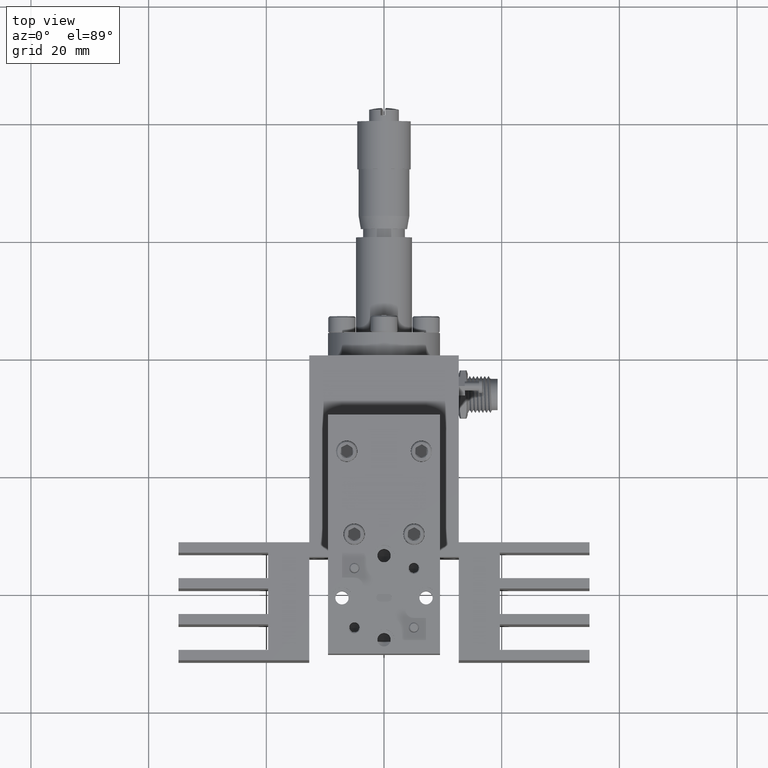
[diagram: clean part render]
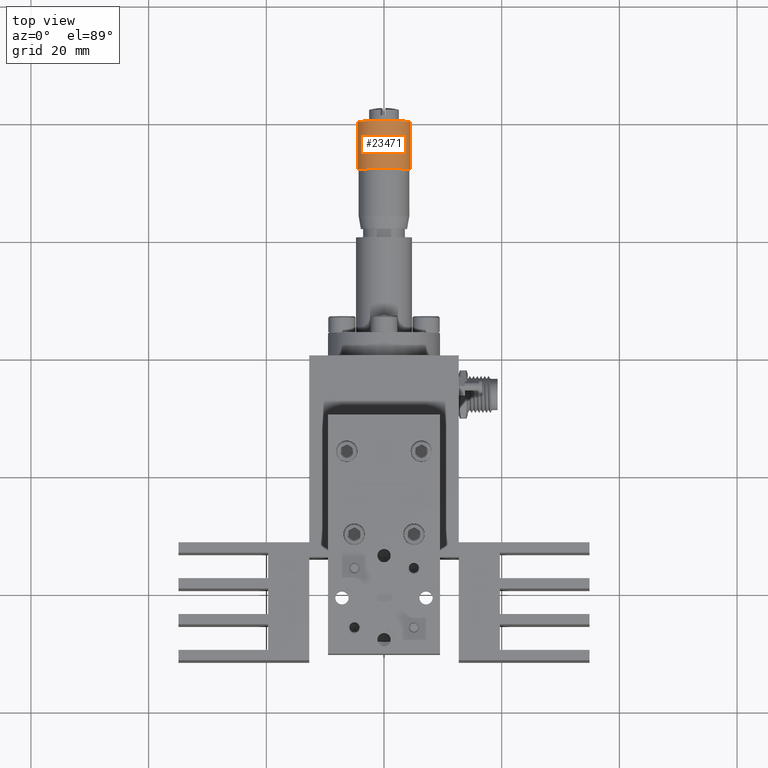
[diagram: same view with one face highlighted and labeled with its STEP entity id]
A machine part, top view. The second image highlights one B-rep face of the part: STEP entity #23471.
In plain terms, the highlighted cylindrical surface (edge-blend (fillet) strip) has radius 4.572 mm, axis along (-0, -1, -0).
Its self-contained STEP definition (entity closure, byte-faithful):
#361 = ORIENTED_EDGE ( 'NONE', *, *, #10042, .T. ) ;
#521 = DIRECTION ( 'NONE',  ( 0.9963761417738301600, 0.0000000000000000000, 0.08505635839780752200 ) ) ;
#1142 = DIRECTION ( 'NONE',  ( -7.062697882880940100E-017, -1.000000000000000000, -5.550089440289674800E-017 ) ) ;
#1344 = DIRECTION ( 'NONE',  ( -7.062697882880940100E-017, -1.000000000000000000, -5.550089440289674800E-017 ) ) ;
#1386 = LINE ( 'NONE', #26009, #13593 ) ;
#1967 = CARTESIAN_POINT ( 'NONE',  ( 0.1793477055192896400, 2.374581112791320300, 0.01531014451160544800 ) ) ;
#3254 = CIRCLE ( 'NONE', #19775, 0.1800000000000000800 ) ;
#3791 = EDGE_LOOP ( 'NONE', ( #33754, #361, #16388, #37160 ) ) ;
#6687 = VERTEX_POINT ( 'NONE', #16324 ) ;
#6705 = DIRECTION ( 'NONE',  ( -7.062697882880940100E-017, -1.000000000000000000, -5.550089440289674800E-017 ) ) ;
#6803 = CYLINDRICAL_SURFACE ( 'NONE', #15404, 0.1800000000000000800 ) ;
#7250 = FACE_OUTER_BOUND ( 'NONE', #3791, .T. ) ;
#8212 = VERTEX_POINT ( 'NONE', #13077 ) ;
#9183 = EDGE_CURVE ( 'NONE', #19959, #9706, #1386, .T. ) ;
#9592 = CARTESIAN_POINT ( 'NONE',  ( 1.365923996832131600E-016, 2.054581112791319600, 8.537024980200822600E-017 ) ) ;
#9706 = VERTEX_POINT ( 'NONE', #22914 ) ;
#10042 = EDGE_CURVE ( 'NONE', #8212, #6687, #37047, .T. ) ;
#12924 = EDGE_CURVE ( 'NONE', #9706, #6687, #19460, .T. ) ;
#13077 = CARTESIAN_POINT ( 'NONE',  ( -0.1793477055192893600, 2.374581112791320300, -0.01531014451160526300 ) ) ;
#13593 = VECTOR ( 'NONE', #28886, 39.37007874015748100 ) ;
#15404 = AXIS2_PLACEMENT_3D ( 'NONE', #24375, #33045, #26876 ) ;
#16324 = CARTESIAN_POINT ( 'NONE',  ( -0.1793477055192893000, 2.054581112791319600, -0.01531014451160525400 ) ) ;
#16388 = ORIENTED_EDGE ( 'NONE', *, *, #12924, .F. ) ;
#19460 = CIRCLE ( 'NONE', #23075, 0.1800000000000000200 ) ;
#19775 = AXIS2_PLACEMENT_3D ( 'NONE', #28336, #1344, #22198 ) ;
#19959 = VERTEX_POINT ( 'NONE', #1967 ) ;
#22198 = DIRECTION ( 'NONE',  ( 0.9963761417738301600, 0.0000000000000000000, 0.08505635839780753500 ) ) ;
#22914 = CARTESIAN_POINT ( 'NONE',  ( 0.1793477055192895800, 2.054581112791319600, 0.01531014451160544200 ) ) ;
#23075 = AXIS2_PLACEMENT_3D ( 'NONE', #9592, #6705, #521 ) ;
#23471 = ADVANCED_FACE ( 'NONE', ( #7250 ), #6803, .T. ) ;
#24375 = CARTESIAN_POINT ( 'NONE',  ( 0.0000000000000000000, 0.9140389641225221700, 0.0000000000000000000 ) ) ;
#26009 = CARTESIAN_POINT ( 'NONE',  ( 0.1793477055192895000, 0.9140389641225221700, 0.01531014451160536200 ) ) ;
#26338 = EDGE_CURVE ( 'NONE', #19959, #8212, #3254, .T. ) ;
#26876 = DIRECTION ( 'NONE',  ( 0.9963761417738301600, 0.0000000000000000000, 0.08505635839780753500 ) ) ;
#28102 = VECTOR ( 'NONE', #1142, 39.37007874015748100 ) ;
#28336 = CARTESIAN_POINT ( 'NONE',  ( 1.365923996832131600E-016, 2.374581112791320300, 8.537024980200822600E-017 ) ) ;
#28886 = DIRECTION ( 'NONE',  ( -7.062697882880940100E-017, -1.000000000000000000, -5.550089440289674800E-017 ) ) ;
#33045 = DIRECTION ( 'NONE',  ( -7.062697882880940100E-017, -1.000000000000000000, -5.550089440289674800E-017 ) ) ;
#33754 = ORIENTED_EDGE ( 'NONE', *, *, #26338, .T. ) ;
#34710 = CARTESIAN_POINT ( 'NONE',  ( -0.1793477055192895000, 0.9140389641225221700, -0.01531014451160533900 ) ) ;
#37047 = LINE ( 'NONE', #34710, #28102 ) ;
#37160 = ORIENTED_EDGE ( 'NONE', *, *, #9183, .F. ) ;